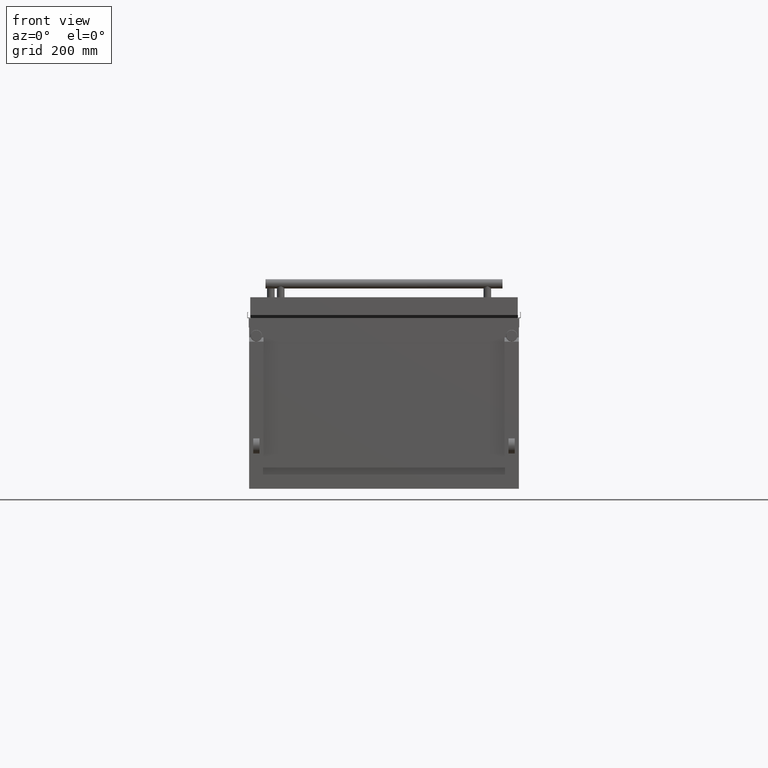
[diagram: clean part render]
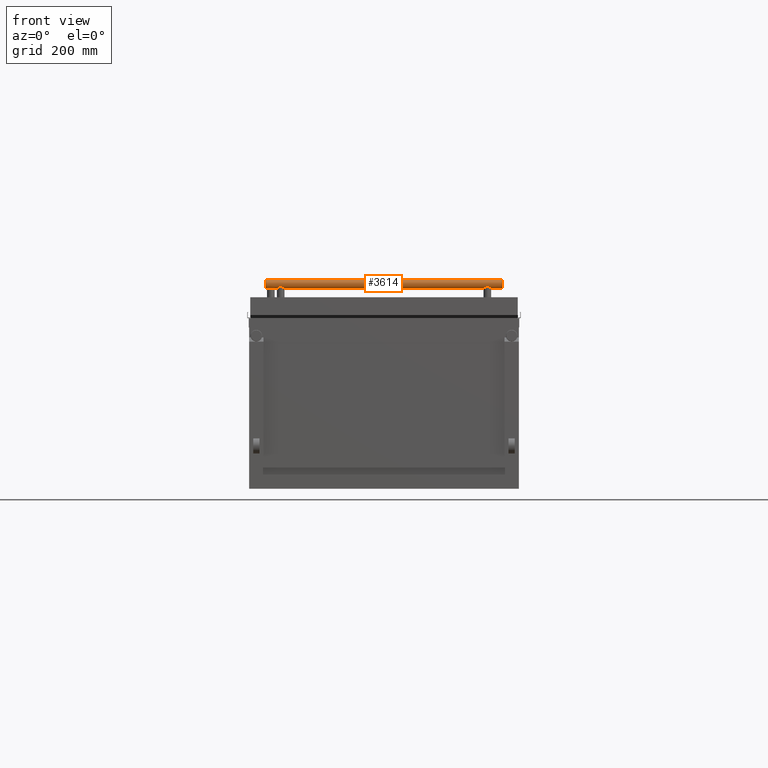
[diagram: same view with one face highlighted and labeled with its STEP entity id]
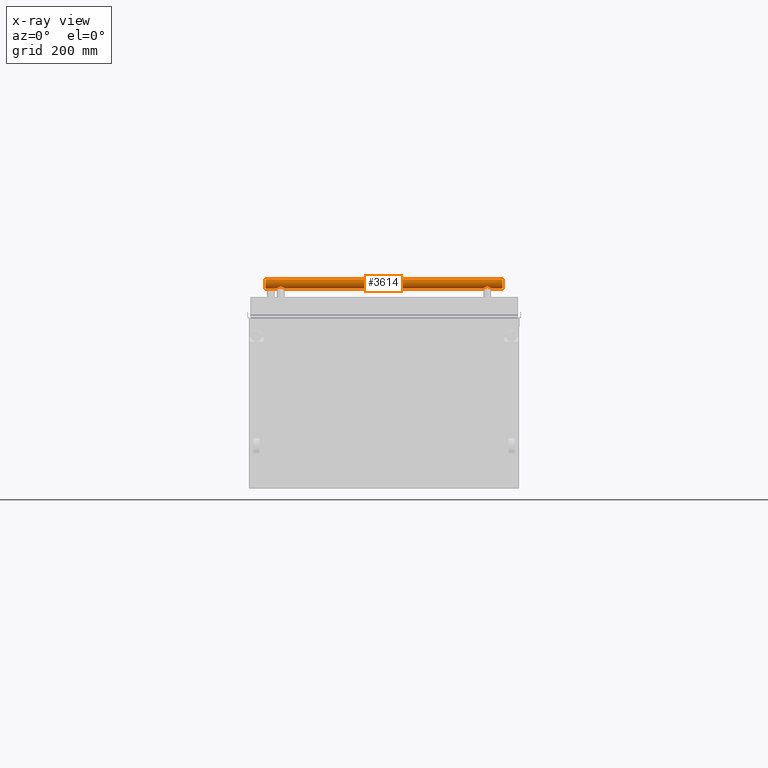
[diagram: x-ray of the same camera — body ghosted, the highlighted face saturated]
A machine part, front view. The second image highlights one B-rep face of the part: STEP entity #3614.
The next image is the same camera in x-ray: the body ghosted, the highlighted face saturated — about 0% of this face is hidden behind the body in this view.
In plain terms, the highlighted cylindrical surface (edge-blend (fillet) strip) has radius 15 mm, axis along (-1, -0, -0).
Its self-contained STEP definition (entity closure, byte-faithful):
#114 = CARTESIAN_POINT ( 'NONE',  ( 350.2069356691007400, -415.1136514691853000, 379.4584394345916400 ) ) ;
#405 = EDGE_CURVE ( 'NONE', #19050, #2433, #7870, .T. ) ;
#513 = CIRCLE ( 'NONE', #4431, 15.00000000000001400 ) ;
#683 = ORIENTED_EDGE ( 'NONE', *, *, #15063, .F. ) ;
#766 = CARTESIAN_POINT ( 'NONE',  ( -328.4004265612313700, -414.4133488671647000, 379.1459077907871300 ) ) ;
#1086 = CARTESIAN_POINT ( 'NONE',  ( 389.4999993500005600, -408.6500000000001500, 408.0000000000000600 ) ) ;
#1114 = CARTESIAN_POINT ( 'NONE',  ( 347.9737507741446600, -417.8475462119214400, 381.1459529952425100 ) ) ;
#1169 = CARTESIAN_POINT ( 'NONE',  ( 333.8725264178116300, -419.8395230756418100, 382.9986415313044900 ) ) ;
#1209 = CARTESIAN_POINT ( 'NONE',  ( -349.9830434503076600, -415.4701416393945700, 379.6349812291156800 ) ) ;
#1239 = CARTESIAN_POINT ( 'NONE',  ( 331.3231517350478700, -418.1125195497181700, 381.3568366597219800 ) ) ;
#1280 = CARTESIAN_POINT ( 'NONE',  ( -347.0862193514213300, -418.6144548595845500, 381.7723239898477900 ) ) ;
#1343 = CARTESIAN_POINT ( 'NONE',  ( -331.0364289687976200, -417.8569033580577100, 381.1532315804392400 ) ) ;
#1364 = CARTESIAN_POINT ( 'NONE',  ( 332.2362551643258300, -418.8301809451630800, 381.9794824662006400 ) ) ;
#1463 = ORIENTED_EDGE ( 'NONE', *, *, #2927, .T. ) ;
#1563 = AXIS2_PLACEMENT_3D ( 'NONE', #18432, #12447, #18740 ) ;
#1629 = CARTESIAN_POINT ( 'NONE',  ( 351.9088212521536400, -410.3863589917957000, 378.0762309729749400 ) ) ;
#1681 = B_SPLINE_CURVE_WITH_KNOTS ( 'NONE', 3,
 ( #5688, #11787, #17675, #5757, #13153, #17740, #5618, #7190, #16104, #10224, #13222, #14678, #8834, #2808, #1239, #16165, #1364, #10157, #1169, #11660, #8689, #19179, #19315, #2685, #11854, #2878, #19058, #13349, #4356, #14869, #4162, #16359, #8761, #2744, #19245, #17542, #8574, #2615, #10087, #1114, #12046, #4558, #18081, #114, #18012, #10549, #16556, #7448, #10623, #6075, #1629, #15064, #19382 ),
 .UNSPECIFIED., .F., .F.,
 ( 4, 2, 2, 2, 2, 2, 2, 2, 2, 2, 2, 2, 2, 1, 2, 2, 2, 2, 2, 2, 2, 2, 2, 2, 2, 2, 4 ),
 ( 0.0000000000000000000, 0.002608781518507062100, 0.003913172277760515500, 0.005217563037013969700, 0.006521953796267424000, 0.007826344555520876500, 0.01043512607402759300, 0.01173951683328091100, 0.01304390759253423000, 0.01565268911104066700, 0.01695707987029385400, 0.01826147062954704100, 0.01956586138880022800, 0.02087025214805340900, 0.02217464290730659600, 0.02347903366655977900, 0.02478342442581296700, 0.02608781518506615000, 0.02869659670357257600, 0.03000098746282580900, 0.03130537822207904400, 0.03391415974058564100, 0.03521855049983890800, 0.03652294125909217500, 0.03782733201834544100, 0.03913172277759871500, 0.04174050429610540200 ),
 .UNSPECIFIED. ) ;
#1745 = LINE ( 'NONE', #18762, #8999 ) ;
#2433 = VERTEX_POINT ( 'NONE', #19359 ) ;
#2588 = CARTESIAN_POINT ( 'NONE',  ( -351.9073230995819600, -410.3986033162049700, 378.0774831881990400 ) ) ;
#2615 = CARTESIAN_POINT ( 'NONE',  ( 347.0846829490975600, -418.5934720327759900, 381.7647881992055000 ) ) ;
#2657 = CARTESIAN_POINT ( 'NONE',  ( -333.1965183278977600, -419.4716513773527700, 382.5959983328875200 ) ) ;
#2685 = CARTESIAN_POINT ( 'NONE',  ( 337.3442622212029400, -420.9698740078615100, 384.4417915157621900 ) ) ;
#2723 = CARTESIAN_POINT ( 'NONE',  ( -336.1186172032362800, -420.6909652010134600, 384.0525535097482400 ) ) ;
#2744 = CARTESIAN_POINT ( 'NONE',  ( 344.0456224117461900, -420.3009147879900000, 383.5493553124189200 ) ) ;
#2784 = CARTESIAN_POINT ( 'NONE',  ( -333.8723937642341800, -419.8393638073463300, 382.9984971232050300 ) ) ;
#2808 = CARTESIAN_POINT ( 'NONE',  ( 331.0349134966853100, -417.8555287064954800, 381.1521514445179300 ) ) ;
#2850 = CARTESIAN_POINT ( 'NONE',  ( -332.2368080827609400, -418.8305724543238900, 381.9798461077976400 ) ) ;
#2878 = CARTESIAN_POINT ( 'NONE',  ( 338.6372979291631400, -421.1278512565774600, 384.6747491331840900 ) ) ;
#2927 = EDGE_CURVE ( 'NONE', #16852, #3481, #1681, .T. ) ;
#2941 = CARTESIAN_POINT ( 'NONE',  ( -326.9999993500005100, -408.6500000000001500, 378.0000000000000000 ) ) ;
#3050 = EDGE_LOOP ( 'NONE', ( #9840, #8191, #6056, #6442, #683, #18823, #5275, #1463 ) ) ;
#3364 = CARTESIAN_POINT ( 'NONE',  ( -389.4999993500006200, -408.6500000000001500, 393.0000000000000600 ) ) ;
#3481 = VERTEX_POINT ( 'NONE', #15271 ) ;
#3614 = ADVANCED_FACE ( 'NONE', ( #6397 ), #3831, .T. ) ;
#3831 = CYLINDRICAL_SURFACE ( 'NONE', #1563, 15.00000000000001400 ) ;
#3968 = CARTESIAN_POINT ( 'NONE',  ( -326.9999993500005100, -408.6500000000001500, 378.0000000000000000 ) ) ;
#4036 = EDGE_CURVE ( 'NONE', #18032, #7982, #513, .T. ) ;
#4162 = CARTESIAN_POINT ( 'NONE',  ( 342.4887898117382300, -420.7946590881950300, 384.1949129098185300 ) ) ;
#4204 = EDGE_CURVE ( 'NONE', #7982, #3481, #7981, .T. ) ;
#4264 = CARTESIAN_POINT ( 'NONE',  ( -351.9999993500006800, -409.5331166179223600, 378.0000000000002300 ) ) ;
#4334 = CARTESIAN_POINT ( 'NONE',  ( -350.7839681291363300, -414.0438574526436400, 378.9975555850065200 ) ) ;
#4356 = CARTESIAN_POINT ( 'NONE',  ( 341.2466150672545400, -421.0350977037015800, 384.5373715441003200 ) ) ;
#4431 = AXIS2_PLACEMENT_3D ( 'NONE', #9232, #18085, #13558 ) ;
#4558 = CARTESIAN_POINT ( 'NONE',  ( 349.3063449942450800, -416.4425067128523800, 380.1612959247082700 ) ) ;
#5132 = DIRECTION ( 'NONE',  ( -1.000000000000000000, -0.0000000000000000000, -0.0000000000000000000 ) ) ;
#5275 = ORIENTED_EDGE ( 'NONE', *, *, #19237, .F. ) ;
#5298 = CARTESIAN_POINT ( 'NONE',  ( -327.0234708618184000, -409.5307866852920100, 378.0195754927849500 ) ) ;
#5367 = B_SPLINE_CURVE_WITH_KNOTS ( 'NONE', 3,
 ( #3968, #12824, #5298, #17272, #17395, #16016, #9753, #17330, #8416, #9943, #766, #14458, #11255, #5855, #5797, #1343, #5592, #19032, #2850, #2657, #2784, #10200, #11827, #2723, #8605, #13130, #7287, #13073, #16278, #17774, #8802, #17648, #13259, #14580, #16078, #14763, #19287, #10317, #19093, #1280, #8663, #10060, #10126, #1209, #11756, #13323, #4334, #10259, #8730, #7104, #5658, #2588, #4264, #14844 ),
 .UNSPECIFIED., .F., .F.,
 ( 4, 2, 2, 2, 2, 2, 2, 2, 2, 2, 2, 2, 2, 2, 2, 2, 2, 2, 2, 2, 2, 2, 2, 2, 2, 2, 4 ),
 ( 0.04174050429610524900, 0.04304314028819850000, 0.04434577628029175800, 0.04564841227238501000, 0.04695104826447826800, 0.04825368425657151900, 0.04955632024866477000, 0.05216159223285138400, 0.05346422822494465600, 0.05476686421703792100, 0.05737213620122465900, 0.05867477219331809800, 0.05997740818541152900, 0.06128004417750497500, 0.06258268016959842000, 0.06388531616169185200, 0.06518795215378528400, 0.06649058814587872900, 0.06779322413797217500, 0.07039849612215891300, 0.07300376810634566500, 0.07560904009053241700, 0.07691167608262582100, 0.07821431207471922500, 0.07951694806681264300, 0.08081958405890604700, 0.08342485604309282700 ),
 .UNSPECIFIED. ) ;
#5592 = CARTESIAN_POINT ( 'NONE',  ( -331.3243026516194000, -418.1134875717696700, 381.3576384939999000 ) ) ;
#5618 = CARTESIAN_POINT ( 'NONE',  ( 327.8820079412725500, -413.2808101990986500, 378.7270111448848400 ) ) ;
#5658 = CARTESIAN_POINT ( 'NONE',  ( -351.6377321204918200, -411.6687360332155100, 378.3006118103253400 ) ) ;
#5688 = CARTESIAN_POINT ( 'NONE',  ( 326.9999993500005600, -408.6500000000001500, 378.0000000000000600 ) ) ;
#5757 = CARTESIAN_POINT ( 'NONE',  ( 327.3598674180289500, -411.6586872347357900, 378.2986291087437400 ) ) ;
#5797 = CARTESIAN_POINT ( 'NONE',  ( -330.2082416820472300, -417.0470001553407000, 380.5524157316977500 ) ) ;
#5855 = CARTESIAN_POINT ( 'NONE',  ( -329.7028144105274800, -416.4540907574927900, 380.1683104929587700 ) ) ;
#6056 = ORIENTED_EDGE ( 'NONE', *, *, #16213, .T. ) ;
#6075 = CARTESIAN_POINT ( 'NONE',  ( 351.6417863129415200, -411.6521592618467500, 378.2972622992654100 ) ) ;
#6294 = DIRECTION ( 'NONE',  ( 0.0000000000000000000, 0.0000000000000000000, 1.000000000000000000 ) ) ;
#6352 = CARTESIAN_POINT ( 'NONE',  ( 431.9264062211934700, -408.6500000000001500, 378.0000000000000600 ) ) ;
#6397 = FACE_OUTER_BOUND ( 'NONE', #3050, .T. ) ;
#6442 = ORIENTED_EDGE ( 'NONE', *, *, #405, .T. ) ;
#6670 = CARTESIAN_POINT ( 'NONE',  ( -351.9999993500005600, -408.6500000000002000, 378.0000000000000600 ) ) ;
#6797 = CARTESIAN_POINT ( 'NONE',  ( 326.9999993500005600, -408.6500000000001500, 378.0000000000000600 ) ) ;
#7104 = CARTESIAN_POINT ( 'NONE',  ( -351.5255437831490300, -412.0874195635428200, 378.3932147430030000 ) ) ;
#7190 = CARTESIAN_POINT ( 'NONE',  ( 328.2146373621129100, -414.0409862062238100, 378.9964332513953900 ) ) ;
#7287 = CARTESIAN_POINT ( 'NONE',  ( -337.7621229539075800, -421.0363231539826600, 384.5391705782315100 ) ) ;
#7403 = LINE ( 'NONE', #6352, #17730 ) ;
#7448 = CARTESIAN_POINT ( 'NONE',  ( 351.2698571869780700, -412.8809437955721400, 378.6029854789648000 ) ) ;
#7772 = DIRECTION ( 'NONE',  ( -1.000000000000000000, -0.0000000000000000000, -0.0000000000000000000 ) ) ;
#7870 = CIRCLE ( 'NONE', #13487, 15.00000000000001400 ) ;
#7981 = LINE ( 'NONE', #15385, #15738 ) ;
#7982 = VERTEX_POINT ( 'NONE', #15524 ) ;
#8056 = DIRECTION ( 'NONE',  ( -1.000000000000000000, -0.0000000000000000000, -0.0000000000000000000 ) ) ;
#8191 = ORIENTED_EDGE ( 'NONE', *, *, #4036, .F. ) ;
#8416 = CARTESIAN_POINT ( 'NONE',  ( -327.8837045387622900, -413.2850883685359800, 378.7283932133562400 ) ) ;
#8574 = CARTESIAN_POINT ( 'NONE',  ( 346.7734650561948800, -418.8232439135648000, 381.9730683015622500 ) ) ;
#8605 = CARTESIAN_POINT ( 'NONE',  ( -336.5187966902078100, -420.7965511085882900, 384.1975259190982700 ) ) ;
#8663 = CARTESIAN_POINT ( 'NONE',  ( -347.6909539336265300, -418.1239417722036900, 381.3510823226704400 ) ) ;
#8689 = CARTESIAN_POINT ( 'NONE',  ( 335.3397993866085500, -420.4445301249904200, 383.7301273386370300 ) ) ;
#8730 = CARTESIAN_POINT ( 'NONE',  ( -351.2651397484885900, -412.8939419851501500, 378.6068424163935300 ) ) ;
#8761 = CARTESIAN_POINT ( 'NONE',  ( 343.6664900970042100, -420.4422563541889400, 383.7272440062928400 ) ) ;
#8765 = EDGE_CURVE ( 'NONE', #19103, #10341, #5367, .T. ) ;
#8802 = CARTESIAN_POINT ( 'NONE',  ( -340.3719020612787200, -421.1271841934996600, 384.6737458661843300 ) ) ;
#8805 = VECTOR ( 'NONE', #7772, 1000.000000000000000 ) ;
#8834 = CARTESIAN_POINT ( 'NONE',  ( 330.2059322376879300, -417.0445259301682200, 380.5507015841564000 ) ) ;
#8999 = VECTOR ( 'NONE', #5132, 1000.000000000000000 ) ;
#9232 = CARTESIAN_POINT ( 'NONE',  ( 389.4999993500005600, -408.6500000000001500, 393.0000000000000600 ) ) ;
#9753 = CARTESIAN_POINT ( 'NONE',  ( -327.4719116269523100, -412.0789468981960200, 378.3911234444007600 ) ) ;
#9840 = ORIENTED_EDGE ( 'NONE', *, *, #4204, .F. ) ;
#9943 = CARTESIAN_POINT ( 'NONE',  ( -328.2168443830730100, -414.0456244604342300, 378.9982129305336100 ) ) ;
#10060 = CARTESIAN_POINT ( 'NONE',  ( -348.7956286073464900, -417.0427698886662700, 380.5495273442251100 ) ) ;
#10087 = CARTESIAN_POINT ( 'NONE',  ( 347.6858375055323300, -418.1047403484414500, 381.3505148088481700 ) ) ;
#10126 = CARTESIAN_POINT ( 'NONE',  ( -349.3000742574664100, -416.4501739832900900, 380.1660792919553300 ) ) ;
#10157 = CARTESIAN_POINT ( 'NONE',  ( 333.1961317899700800, -419.4714374493559600, 382.5957674629107100 ) ) ;
#10200 = CARTESIAN_POINT ( 'NONE',  ( -334.9604581577487500, -420.3032406447466700, 383.5522509015349900 ) ) ;
#10224 = CARTESIAN_POINT ( 'NONE',  ( 328.7979729444778100, -415.1217587008089300, 379.4623222469677400 ) ) ;
#10259 = CARTESIAN_POINT ( 'NONE',  ( -351.1163641673310800, -413.2848374360525000, 378.7283347238035300 ) ) ;
#10317 = CARTESIAN_POINT ( 'NONE',  ( -345.1314716839930300, -419.8376298715891700, 382.9964652757064400 ) ) ;
#10341 = VERTEX_POINT ( 'NONE', #6670 ) ;
#10549 = CARTESIAN_POINT ( 'NONE',  ( 350.7896514951768800, -414.0319568692316400, 378.9929734641770000 ) ) ;
#10623 = CARTESIAN_POINT ( 'NONE',  ( 351.5299289092438400, -412.0721679829594000, 378.3896037419722200 ) ) ;
#11255 = CARTESIAN_POINT ( 'NONE',  ( -329.0172738098016200, -415.4707134209861000, 379.6352369842239800 ) ) ;
#11333 = CARTESIAN_POINT ( 'NONE',  ( -389.4999993500006200, -408.6500000000001500, 408.0000000000000600 ) ) ;
#11660 = CARTESIAN_POINT ( 'NONE',  ( 334.9624570873712100, -420.3040413497019500, 383.5532296688574500 ) ) ;
#11756 = CARTESIAN_POINT ( 'NONE',  ( -350.1991401183109400, -415.1265961789843000, 379.4646070363791600 ) ) ;
#11787 = CARTESIAN_POINT ( 'NONE',  ( 326.9999993500005600, -409.5343062549726500, 378.0000000000001100 ) ) ;
#11827 = CARTESIAN_POINT ( 'NONE',  ( -335.3357252207176200, -420.4431085456997700, 383.7283101595623400 ) ) ;
#11854 = CARTESIAN_POINT ( 'NONE',  ( 337.7678893331811900, -421.0371231774136000, 384.5403455529040000 ) ) ;
#12046 = CARTESIAN_POINT ( 'NONE',  ( 348.8016511323213000, -417.0360927847773400, 380.5450172761729800 ) ) ;
#12229 = CARTESIAN_POINT ( 'NONE',  ( 431.9264062211934700, -408.6500000000001500, 378.0000000000000600 ) ) ;
#12447 = DIRECTION ( 'NONE',  ( -1.000000000000000000, -0.0000000000000000000, -0.0000000000000000000 ) ) ;
#12824 = CARTESIAN_POINT ( 'NONE',  ( -326.9999993500005600, -409.0877079013502000, 378.0000000000001100 ) ) ;
#13073 = CARTESIAN_POINT ( 'NONE',  ( -338.6319228693483300, -421.1274860796043500, 384.6741981219568100 ) ) ;
#13130 = CARTESIAN_POINT ( 'NONE',  ( -337.3405507628076500, -420.9692148666857700, 384.4408412301838200 ) ) ;
#13153 = CARTESIAN_POINT ( 'NONE',  ( 327.4714271455462200, -412.0771166915122900, 378.3907233092082800 ) ) ;
#13222 = CARTESIAN_POINT ( 'NONE',  ( 329.0150778046217400, -415.4673395792558500, 379.6335137096730300 ) ) ;
#13259 = CARTESIAN_POINT ( 'NONE',  ( -341.6634991781338600, -420.9684740781755700, 384.4397776402088900 ) ) ;
#13323 = CARTESIAN_POINT ( 'NONE',  ( -350.6003398074728900, -414.4119747460364900, 379.1452965469735500 ) ) ;
#13349 = CARTESIAN_POINT ( 'NONE',  ( 340.3766606970868300, -421.1268896956139500, 384.6732990304490700 ) ) ;
#13487 = AXIS2_PLACEMENT_3D ( 'NONE', #3364, #15279, #6294 ) ;
#13558 = DIRECTION ( 'NONE',  ( 0.0000000000000000000, 1.000000000000000000, 0.0000000000000000000 ) ) ;
#14458 = CARTESIAN_POINT ( 'NONE',  ( -328.8001898417217600, -415.1253982691708300, 379.4640745288088500 ) ) ;
#14580 = CARTESIAN_POINT ( 'NONE',  ( -342.4834865585912100, -420.7959597890492200, 384.1967124739357500 ) ) ;
#14678 = CARTESIAN_POINT ( 'NONE',  ( 329.7003746120809100, -416.4510351878776100, 380.1664444228791200 ) ) ;
#14763 = CARTESIAN_POINT ( 'NONE',  ( -343.6596949682712500, -420.4446320925024500, 383.7302793417701400 ) ) ;
#14844 = CARTESIAN_POINT ( 'NONE',  ( -351.9999993500005600, -408.6500000000002000, 378.0000000000000600 ) ) ;
#14869 = CARTESIAN_POINT ( 'NONE',  ( 341.6686951674426500, -420.9675635270966700, 384.4384620663051900 ) ) ;
#15063 = EDGE_CURVE ( 'NONE', #10341, #2433, #7403, .T. ) ;
#15064 = CARTESIAN_POINT ( 'NONE',  ( 351.9999993500005600, -409.5265950660640300, 378.0000000000000600 ) ) ;
#15271 = CARTESIAN_POINT ( 'NONE',  ( 351.9999993500006200, -408.6500000000001500, 378.0000000000000000 ) ) ;
#15279 = DIRECTION ( 'NONE',  ( 1.000000000000000000, -0.0000000000000000000, -0.0000000000000000000 ) ) ;
#15385 = CARTESIAN_POINT ( 'NONE',  ( 431.9264062211934700, -408.6500000000001500, 378.0000000000000600 ) ) ;
#15524 = CARTESIAN_POINT ( 'NONE',  ( 389.4999993500005600, -408.6500000000001500, 378.0000000000000600 ) ) ;
#15738 = VECTOR ( 'NONE', #15960, 1000.000000000000000 ) ;
#15960 = DIRECTION ( 'NONE',  ( -1.000000000000000000, -0.0000000000000000000, -0.0000000000000000000 ) ) ;
#16016 = CARTESIAN_POINT ( 'NONE',  ( -327.3611345993458000, -411.6637248883336000, 378.2996756872414600 ) ) ;
#16078 = CARTESIAN_POINT ( 'NONE',  ( -342.8818253246882400, -420.6907502636288400, 384.0522963634223900 ) ) ;
#16081 = LINE ( 'NONE', #12229, #8805 ) ;
#16104 = CARTESIAN_POINT ( 'NONE',  ( 328.3980872944968000, -414.4088695572884800, 379.1440337381841900 ) ) ;
#16165 = CARTESIAN_POINT ( 'NONE',  ( 331.9248770347962800, -418.6007605265453400, 381.7712470086593700 ) ) ;
#16213 = EDGE_CURVE ( 'NONE', #18032, #19050, #1745, .T. ) ;
#16278 = CARTESIAN_POINT ( 'NONE',  ( -339.0679611764799700, -421.1500957714143300, 384.7085824049391900 ) ) ;
#16359 = CARTESIAN_POINT ( 'NONE',  ( 342.8874854697572800, -420.6891815692026700, 384.0501720248088900 ) ) ;
#16556 = CARTESIAN_POINT ( 'NONE',  ( 351.1212966825294800, -413.2724618560146700, 378.7243179319792700 ) ) ;
#16852 = VERTEX_POINT ( 'NONE', #6797 ) ;
#17272 = CARTESIAN_POINT ( 'NONE',  ( -327.1149857260398300, -410.3967071407983600, 378.0957080756701300 ) ) ;
#17330 = CARTESIAN_POINT ( 'NONE',  ( -327.7341349251697700, -412.8922877602176400, 378.6062532463956800 ) ) ;
#17395 = CARTESIAN_POINT ( 'NONE',  ( -327.1828619630632600, -410.8231777949727100, 378.1521257119316600 ) ) ;
#17542 = CARTESIAN_POINT ( 'NONE',  ( 345.8137668178046600, -419.4656886409858900, 382.5897484733165500 ) ) ;
#17648 = CARTESIAN_POINT ( 'NONE',  ( -341.2396868878832400, -421.0360335461758200, 384.5387467658500800 ) ) ;
#17675 = CARTESIAN_POINT ( 'NONE',  ( 327.0927236588002500, -410.3962871273381600, 378.0775169256637000 ) ) ;
#17730 = VECTOR ( 'NONE', #8056, 1000.000000000000000 ) ;
#17740 = CARTESIAN_POINT ( 'NONE',  ( 327.7328177196224000, -412.8885274061523200, 378.6051752468935100 ) ) ;
#17774 = CARTESIAN_POINT ( 'NONE',  ( -339.9375617024068700, -421.1499036182550000, 384.7082927231754200 ) ) ;
#18012 = CARTESIAN_POINT ( 'NONE',  ( 350.6065575190289100, -414.3999253294593400, 379.1403098314801800 ) ) ;
#18032 = VERTEX_POINT ( 'NONE', #1086 ) ;
#18081 = CARTESIAN_POINT ( 'NONE',  ( 349.9901950711818600, -415.4591987540659400, 379.6293723734329400 ) ) ;
#18085 = DIRECTION ( 'NONE',  ( 1.000000000000000000, -1.682156097916904100E-016, 0.0000000000000000000 ) ) ;
#18432 = CARTESIAN_POINT ( 'NONE',  ( 431.9264062211934700, -408.6500000000001500, 393.0000000000000600 ) ) ;
#18740 = DIRECTION ( 'NONE',  ( 0.0000000000000000000, 0.0000000000000000000, 1.000000000000000000 ) ) ;
#18762 = CARTESIAN_POINT ( 'NONE',  ( 431.9264062211934700, -408.6500000000001500, 408.0000000000000600 ) ) ;
#18823 = ORIENTED_EDGE ( 'NONE', *, *, #8765, .F. ) ;
#19032 = CARTESIAN_POINT ( 'NONE',  ( -331.9250592240084100, -418.6008741129910500, 381.7713632686405800 ) ) ;
#19050 = VERTEX_POINT ( 'NONE', #11333 ) ;
#19058 = CARTESIAN_POINT ( 'NONE',  ( 339.5068415027262700, -421.1726256498147900, 384.7428463738803000 ) ) ;
#19093 = CARTESIAN_POINT ( 'NONE',  ( -345.8079074948399800, -419.4690290412274900, 382.5932867896381700 ) ) ;
#19103 = VERTEX_POINT ( 'NONE', #2941 ) ;
#19179 = CARTESIAN_POINT ( 'NONE',  ( 336.1218763357723600, -420.6918640378248700, 384.0537722742078600 ) ) ;
#19237 = EDGE_CURVE ( 'NONE', #16852, #19103, #16081, .T. ) ;
#19245 = CARTESIAN_POINT ( 'NONE',  ( 345.1370724347546600, -419.8347854115781400, 382.9932734159174900 ) ) ;
#19287 = CARTESIAN_POINT ( 'NONE',  ( -344.0393179329730600, -420.3033781582996700, 383.5523960825707900 ) ) ;
#19315 = CARTESIAN_POINT ( 'NONE',  ( 336.5219355053519100, -420.7973303188500700, 384.1986027158179700 ) ) ;
#19359 = CARTESIAN_POINT ( 'NONE',  ( -389.4999993500006200, -408.6500000000001500, 378.0000000000000600 ) ) ;
#19382 = CARTESIAN_POINT ( 'NONE',  ( 351.9999993500006200, -408.6500000000001500, 378.0000000000000000 ) ) ;